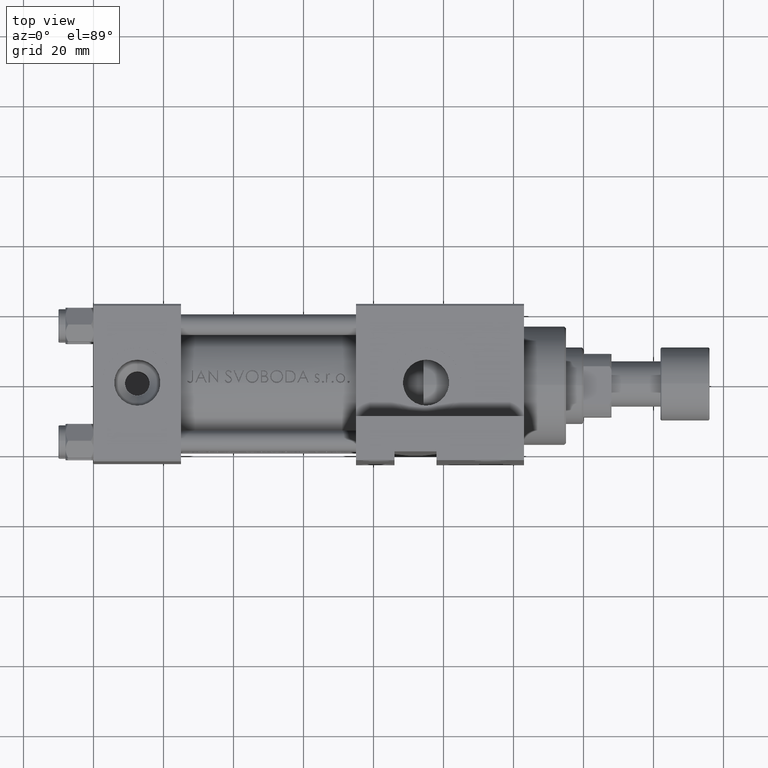
[diagram: clean part render]
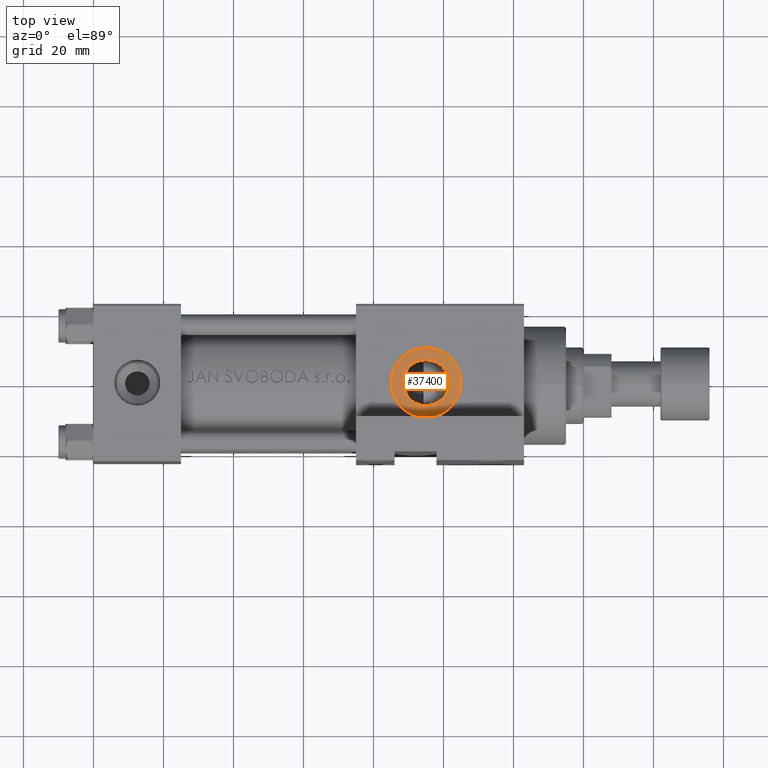
[diagram: same view with one face highlighted and labeled with its STEP entity id]
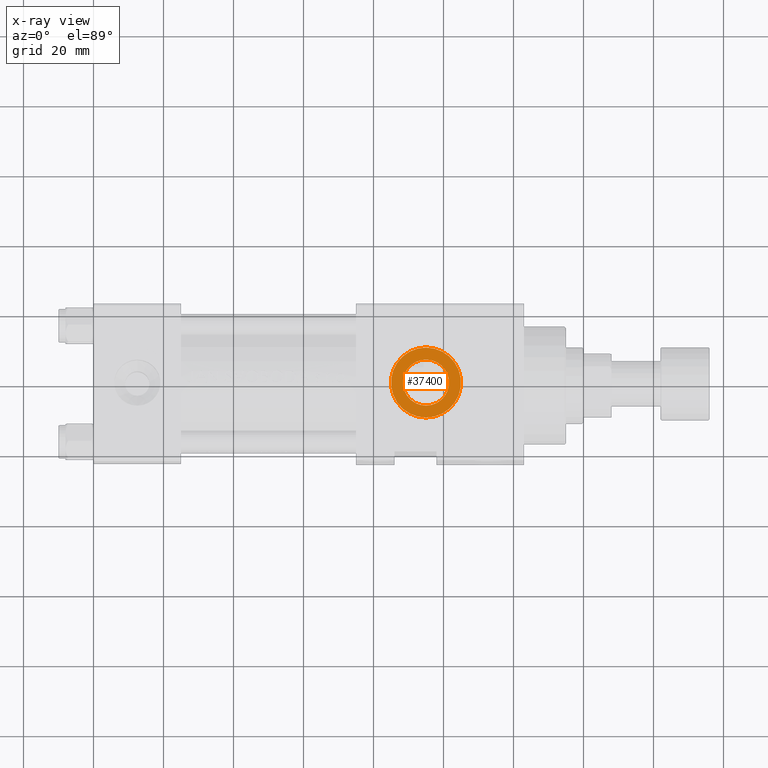
[diagram: x-ray of the same camera — body ghosted, the highlighted face saturated]
A machine part, top view. The second image highlights one B-rep face of the part: STEP entity #37400.
The next image is the same camera in x-ray: the body ghosted, the highlighted face saturated — about 0% of this face is hidden behind the body in this view.
In plain terms, the highlighted planar face has unit normal (0, -0, 1).
Its self-contained STEP definition (entity closure, byte-faithful):
#986 = VERTEX_POINT ( 'NONE', #40563 ) ;
#4563 = AXIS2_PLACEMENT_3D ( 'NONE', #40928, #25048, #44455 ) ;
#4750 = AXIS2_PLACEMENT_3D ( 'NONE', #27988, #8849, #24198 ) ;
#5812 = ORIENTED_EDGE ( 'NONE', *, *, #49325, .F. ) ;
#5988 = VERTEX_POINT ( 'NONE', #6288 ) ;
#6288 = CARTESIAN_POINT ( 'NONE',  ( 95.00000000000001421, -22.29999999999999716, -9.999999999999994671 ) ) ;
#6658 = CARTESIAN_POINT ( 'NONE',  ( 95.00000000000001421, -22.29999999999999716, 1.734723475976808635E-17 ) ) ;
#7031 = PLANE ( 'NONE',  #23213 ) ;
#7753 = VERTEX_POINT ( 'NONE', #27148 ) ;
#8849 = DIRECTION ( 'NONE',  ( 0.000000000000000000, -1.000000000000000000, -8.673617379884036705E-17 ) ) ;
#9658 = EDGE_CURVE ( 'NONE', #5988, #47675, #38493, .T. ) ;
#11564 = DIRECTION ( 'NONE',  ( 0.000000000000000000, 8.673617379884036705E-17, -1.000000000000000000 ) ) ;
#11820 = CIRCLE ( 'NONE', #46393, 6.580000000000002736 ) ;
#12032 = CARTESIAN_POINT ( 'NONE',  ( 95.00000000000001421, -22.29999999999999716, 9.999999999999994671 ) ) ;
#15028 = CIRCLE ( 'NONE', #4563, 6.580000000000002736 ) ;
#18387 = EDGE_CURVE ( 'NONE', #47675, #5988, #46798, .T. ) ;
#18622 = FACE_OUTER_BOUND ( 'NONE', #22172, .T. ) ;
#22172 = EDGE_LOOP ( 'NONE', ( #30744, #43563 ) ) ;
#22386 = DIRECTION ( 'NONE',  ( 0.000000000000000000, -1.000000000000000000, -8.673617379884036705E-17 ) ) ;
#22636 = CARTESIAN_POINT ( 'NONE',  ( 95.00000000000001421, -22.29999999999999716, 1.734723475976807403E-17 ) ) ;
#23213 = AXIS2_PLACEMENT_3D ( 'NONE', #22636, #22386, #11564 ) ;
#23374 = FACE_BOUND ( 'NONE', #23637, .T. ) ;
#23637 = EDGE_LOOP ( 'NONE', ( #38158, #5812 ) ) ;
#24198 = DIRECTION ( 'NONE',  ( 0.000000000000000000, 0.000000000000000000, -1.000000000000000000 ) ) ;
#25048 = DIRECTION ( 'NONE',  ( 0.000000000000000000, -1.000000000000000000, -8.673617379884036705E-17 ) ) ;
#25541 = DIRECTION ( 'NONE',  ( 0.000000000000000000, 0.000000000000000000, -1.000000000000000000 ) ) ;
#26534 = DIRECTION ( 'NONE',  ( 0.000000000000000000, -1.000000000000000000, -8.673617379884036705E-17 ) ) ;
#27148 = CARTESIAN_POINT ( 'NONE',  ( 95.00000000000001421, -22.29999999999999716, 6.580000000000002736 ) ) ;
#27499 = AXIS2_PLACEMENT_3D ( 'NONE', #29587, #26534, #25541 ) ;
#27988 = CARTESIAN_POINT ( 'NONE',  ( 95.00000000000001421, -22.29999999999999716, 1.734723475976807403E-17 ) ) ;
#29587 = CARTESIAN_POINT ( 'NONE',  ( 95.00000000000001421, -22.29999999999999716, 1.734723475976807403E-17 ) ) ;
#30248 = EDGE_CURVE ( 'NONE', #986, #7753, #15028, .T. ) ;
#30744 = ORIENTED_EDGE ( 'NONE', *, *, #9658, .T. ) ;
#33354 = DIRECTION ( 'NONE',  ( 0.000000000000000000, 0.000000000000000000, -1.000000000000000000 ) ) ;
#37400 = ADVANCED_FACE ( 'NONE', ( #23374, #18622 ), #7031, .T. ) ;
#38158 = ORIENTED_EDGE ( 'NONE', *, *, #30248, .F. ) ;
#38493 = CIRCLE ( 'NONE', #4750, 9.999999999999994671 ) ;
#40563 = CARTESIAN_POINT ( 'NONE',  ( 95.00000000000001421, -22.29999999999999716, -6.580000000000002736 ) ) ;
#40928 = CARTESIAN_POINT ( 'NONE',  ( 95.00000000000001421, -22.29999999999999716, 1.734723475976808635E-17 ) ) ;
#43563 = ORIENTED_EDGE ( 'NONE', *, *, #18387, .T. ) ;
#44203 = DIRECTION ( 'NONE',  ( 0.000000000000000000, -1.000000000000000000, -8.673617379884036705E-17 ) ) ;
#44455 = DIRECTION ( 'NONE',  ( 0.000000000000000000, 0.000000000000000000, -1.000000000000000000 ) ) ;
#46393 = AXIS2_PLACEMENT_3D ( 'NONE', #6658, #44203, #33354 ) ;
#46798 = CIRCLE ( 'NONE', #27499, 9.999999999999994671 ) ;
#47675 = VERTEX_POINT ( 'NONE', #12032 ) ;
#49325 = EDGE_CURVE ( 'NONE', #7753, #986, #11820, .T. ) ;